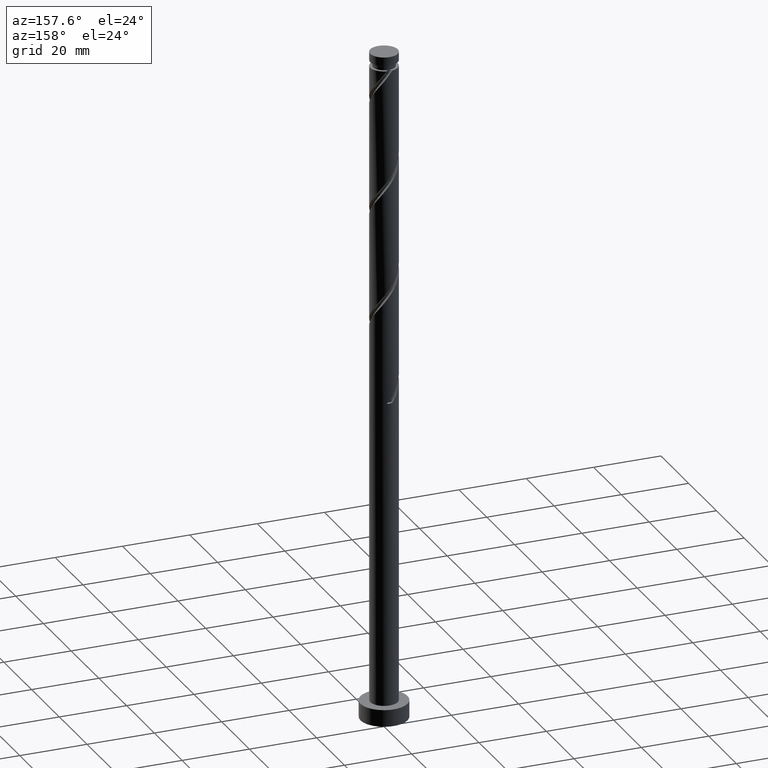
[diagram: clean part render]
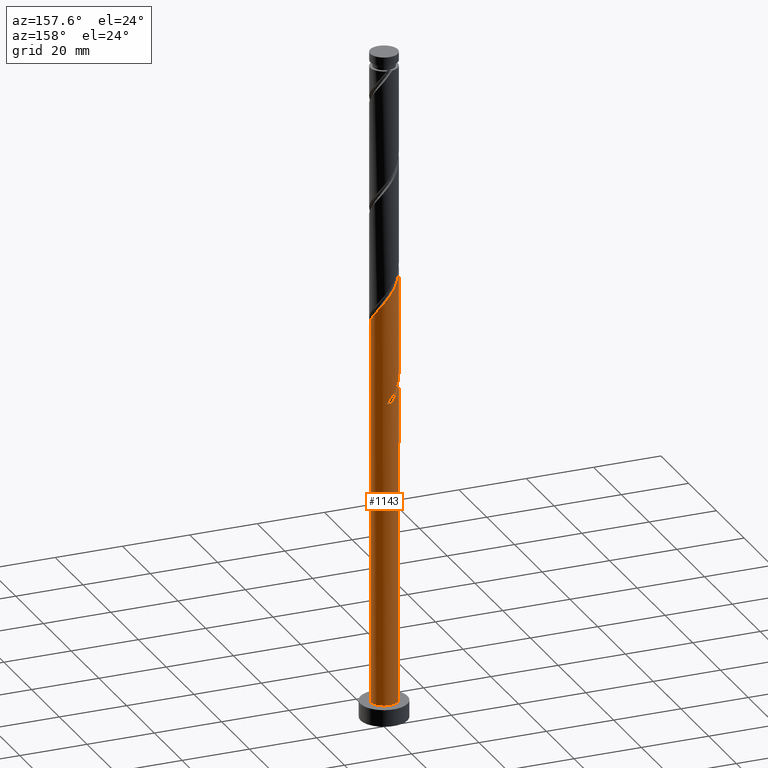
[diagram: same view with one face highlighted and labeled with its STEP entity id]
A machine part, auxiliary view. The second image highlights one B-rep face of the part: STEP entity #1143.
In plain terms, the highlighted cylindrical surface (edge-blend (fillet) strip) has radius 4.1 mm, axis along (-0, -0, -1).
Its self-contained STEP definition (entity closure, byte-faithful):
#2 = CARTESIAN_POINT ( 'NONE',  ( 2.264233908349269075, 3.418076185265834788, 124.9762429870026637 ) ) ;
#16 = CARTESIAN_POINT ( 'NONE',  ( 4.099999999999999645, 5.021051876504147385E-16, 200.0000000000000000 ) ) ;
#27 = CARTESIAN_POINT ( 'NONE',  ( -2.715581205524180586, 3.071745223192163810, 98.58735409811377792 ) ) ;
#44 = CARTESIAN_POINT ( 'NONE',  ( -0.8158896984274291997, 4.018000000000004235, 95.80957632033602067 ) ) ;
#53 = CARTESIAN_POINT ( 'NONE',  ( -0.8158896984274290887, 4.018000000000004235, 95.80957632033602067 ) ) ;
#70 = AXIS2_PLACEMENT_3D ( 'NONE', #233, #1577, #1286 ) ;
#71 = VECTOR ( 'NONE', #862, 1000.000000000000000 ) ;
#137 = CARTESIAN_POINT ( 'NONE',  ( 0.2518459921076788288, 4.092257762685450828, 127.7540207647804635 ) ) ;
#145 = CARTESIAN_POINT ( 'NONE',  ( -4.059101608817101692, 0.7906019473366244776, 135.3929096536693635 ) ) ;
#155 = EDGE_CURVE ( 'NONE', #818, #464, #1592, .T. ) ;
#169 = CARTESIAN_POINT ( 'NONE',  ( -1.828023854336183751, 3.669922177373510674, 97.19846520922489219 ) ) ;
#220 = CARTESIAN_POINT ( 'NONE',  ( -4.100000000000004974, -2.990756888724007897E-15, 136.4126763317925679 ) ) ;
#233 = CARTESIAN_POINT ( 'NONE',  ( 0.000000000000000000, 0.000000000000000000, 95.80957632033603488 ) ) ;
#259 = CARTESIAN_POINT ( 'NONE',  ( -0.2869099631212688184, 4.125413916553803517, 128.4484652092249348 ) ) ;
#266 = CARTESIAN_POINT ( 'NONE',  ( -2.715581205524180586, 3.071745223192163810, 131.9206874314471065 ) ) ;
#269 = CARTESIAN_POINT ( 'NONE',  ( -3.071745223192159369, 2.715581205524179698, 101.3651318758915778 ) ) ;
#272 = CARTESIAN_POINT ( 'NONE',  ( -3.887634921619593342, 1.302418794475823649, 101.3651318758915494 ) ) ;
#273 = CARTESIAN_POINT ( 'NONE',  ( -3.418076185265835232, 2.264233908349268631, 133.3095763203359922 ) ) ;
#279 = CARTESIAN_POINT ( 'NONE',  ( 0.7906019473366268091, 4.059101608817101692, 127.0595763203360207 ) ) ;
#302 = CYLINDRICAL_SURFACE ( 'NONE', #887, 4.099999999999999645 ) ;
#309 = ORIENTED_EDGE ( 'NONE', *, *, #1610, .T. ) ;
#312 = FACE_OUTER_BOUND ( 'NONE', #1360, .T. ) ;
#327 = LINE ( 'NONE', #16, #71 ) ;
#339 = CARTESIAN_POINT ( 'NONE',  ( 4.100000000000004974, 4.635673177522212615E-16, 119.7460096651259391 ) ) ;
#347 = LINE ( 'NONE', #1572, #431 ) ;
#392 = CARTESIAN_POINT ( 'NONE',  ( -3.119984136109582806, 2.714232175083515219, 132.6151318758916204 ) ) ;
#406 = CARTESIAN_POINT ( 'NONE',  ( -4.100000000000004974, -2.990756888724007897E-15, 136.4126763317925679 ) ) ;
#416 = CARTESIAN_POINT ( 'NONE',  ( 0.000000000000000000, 0.000000000000000000, 5.000000000000000000 ) ) ;
#431 = VECTOR ( 'NONE', #1145, 1000.000000000000000 ) ;
#464 = VERTEX_POINT ( 'NONE', #1150 ) ;
#498 = CARTESIAN_POINT ( 'NONE',  ( 4.100000000000004974, 4.635673177522212615E-16, 119.7460096651259391 ) ) ;
#509 = CARTESIAN_POINT ( 'NONE',  ( -2.714232175083509890, 3.119984136109578809, 100.6706874314471207 ) ) ;
#525 = ORIENTED_EDGE ( 'NONE', *, *, #155, .T. ) ;
#541 = CARTESIAN_POINT ( 'NONE',  ( -0.8158896984274289776, 4.018000000000004235, 129.1429096536693351 ) ) ;
#545 = CARTESIAN_POINT ( 'NONE',  ( -1.302418794475821207, 3.887634921619589345, 98.58735409811380634 ) ) ;
#562 = EDGE_CURVE ( 'NONE', #1021, #1256, #1678, .T. ) ;
#564 = CARTESIAN_POINT ( 'NONE',  ( -3.119984136109582806, 2.714232175083515219, 99.28179854255823500 ) ) ;
#583 = CARTESIAN_POINT ( 'NONE',  ( -4.100000000000004974, -2.990756888724007897E-15, 103.0793429984593104 ) ) ;
#591 = CARTESIAN_POINT ( 'NONE',  ( -4.059101608817101692, 0.7906019473366244776, 102.0595763203360349 ) ) ;
#641 = CARTESIAN_POINT ( 'NONE',  ( 0.8158896984274305320, 4.017999999999999794, 95.80957632033602067 ) ) ;
#655 = CARTESIAN_POINT ( 'NONE',  ( 1.814235641615024708, 3.716168234422086769, 125.6706874314471492 ) ) ;
#660 = CARTESIAN_POINT ( 'NONE',  ( -3.910586083446200956, 1.344869433733586694, 103.4484652092248922 ) ) ;
#666 = VERTEX_POINT ( 'NONE', #1166 ) ;
#670 = CARTESIAN_POINT ( 'NONE',  ( -2.264233908349265523, 3.418076185265831679, 99.97624298700266365 ) ) ;
#671 = EDGE_CURVE ( 'NONE', #1334, #1226, #707, .T. ) ;
#675 = CARTESIAN_POINT ( 'NONE',  ( 3.071745223192165586, 2.715581205524178365, 123.5873540981137495 ) ) ;
#690 = CARTESIAN_POINT ( 'NONE',  ( -1.344869433733587583, 3.910586083446207173, 129.8373540981138206 ) ) ;
#707 =( BOUNDED_CURVE ( )  B_SPLINE_CURVE ( 2, ( #498, #1032, #1460, #1737, #1467, #1221, #675, #816, #2, #655, #1611, #279, #137, #259, #541, #690, #1078, #1620, #266, #392, #273, #798, #1350, #145, #1059, #1339, #406 ),
 .UNSPECIFIED., .F., .T. ) 
 B_SPLINE_CURVE_WITH_KNOTS ( ( 3, 2, 2, 2, 2, 2, 2, 2, 2, 2, 2, 2, 2, 3 ),
 ( 0.1795317669814462946, 0.1875000000000000000, 0.1979166666666666297, 0.2083333333333333703, 0.2187500000000000000, 0.2291666666666666297, 0.2395833333333333703, 0.2500000000000000000, 0.2604166666666666297, 0.2708333333333333703, 0.2812500000000000000, 0.2916666666666666297, 0.3020833333333333703, 0.3045317669814462946 ),
 .UNSPECIFIED. ) 
 CURVE ( )  GEOMETRIC_REPRESENTATION_ITEM ( )  RATIONAL_B_SPLINE_CURVE ( ( 0.9062941362546472757, 0.9031415850403514689, 0.9090909090909271573, 0.9013135103398453030, 0.9090909090909271573, 0.9013135103398453030, 0.9090909090909271573, 0.9013135103398453030, 0.9090909090909271573, 0.9013135103398453030, 0.9090909090909271573, 0.9013135103398453030, 0.9090909090909271573, 0.9013135103398453030, 0.9090909090909271573, 0.9013135103398453030, 0.9090909090909271573, 0.9013135103398453030, 0.9090909090909271573, 0.9013135103398453030, 0.9090909090909271573, 0.9013135103398453030, 0.9090909090909271573, 0.9013135103398453030, 0.9090909090909271573, 0.9072628343904207693, 0.9062941362546472757 ) ) 
 REPRESENTATION_ITEM ( '' )  );
#781 = CARTESIAN_POINT ( 'NONE',  ( -4.099999999999999645, 0.4120655042562805237, 104.6730499396901308 ) ) ;
#798 = CARTESIAN_POINT ( 'NONE',  ( -3.716168234422086769, 1.814235641615022931, 134.0040207647804493 ) ) ;
#816 = CARTESIAN_POINT ( 'NONE',  ( 2.714232175083517440, 3.119984136109580142, 124.2817985425582634 ) ) ;
#818 = VERTEX_POINT ( 'NONE', #1695 ) ;
#820 = CARTESIAN_POINT ( 'NONE',  ( -3.669922177373504901, 1.828023854336183307, 102.7540207647804777 ) ) ;
#837 = CARTESIAN_POINT ( 'NONE',  ( -2.311178274938780586, 3.429258271300814620, 97.89290965366934927 ) ) ;
#852 = EDGE_CURVE ( 'NONE', #666, #464, #1310, .T. ) ;
#854 = CARTESIAN_POINT ( 'NONE',  ( 0.000000000000000000, 0.000000000000000000, 200.0000000000000000 ) ) ;
#862 = DIRECTION ( 'NONE',  ( -0.000000000000000000, -0.000000000000000000, -1.000000000000000000 ) ) ;
#887 = AXIS2_PLACEMENT_3D ( 'NONE', #854, #1651, #1381 ) ;
#923 = VERTEX_POINT ( 'NONE', #1057 ) ;
#963 = DIRECTION ( 'NONE',  ( 1.000000000000000000, 0.000000000000000000, 0.000000000000000000 ) ) ;
#1021 = VERTEX_POINT ( 'NONE', #44 ) ;
#1031 = EDGE_CURVE ( 'NONE', #1021, #666, #1133, .T. ) ;
#1032 = CARTESIAN_POINT ( 'NONE',  ( 4.100000000000005862, 0.4120655042562738624, 120.2794360343152107 ) ) ;
#1048 = ORIENTED_EDGE ( 'NONE', *, *, #852, .F. ) ;
#1057 = CARTESIAN_POINT ( 'NONE',  ( -4.100000000000000533, 4.919795081951022713E-15, 105.2064763088794024 ) ) ;
#1059 = CARTESIAN_POINT ( 'NONE',  ( -4.092257762685451716, 0.2518459921076763863, 136.0873540981137353 ) ) ;
#1078 = CARTESIAN_POINT ( 'NONE',  ( -1.828023854336183751, 3.669922177373510674, 130.5317985425582208 ) ) ;
#1083 = CARTESIAN_POINT ( 'NONE',  ( -3.429258271300808403, 2.311178274938777477, 102.0595763203360207 ) ) ;
#1133 =( BOUNDED_CURVE ( )  B_SPLINE_CURVE ( 2, ( #53, #1211, #169, #837, #27, #564, #1539, #1641, #272, #591, #1255, #1400, #583 ),
 .UNSPECIFIED., .F., .T. ) 
 B_SPLINE_CURVE_WITH_KNOTS ( ( 3, 2, 2, 2, 2, 2, 3 ),
 ( 0.000000000000000000, 0.01041666666666662966, 0.02083333333333337034, 0.03125000000000000000, 0.04166666666666662966, 0.05208333333333337034, 0.05453176698144637097 ),
 .UNSPECIFIED. ) 
 CURVE ( )  GEOMETRIC_REPRESENTATION_ITEM ( )  RATIONAL_B_SPLINE_CURVE ( ( 0.9090909090909271573, 0.9013135103398453030, 0.9090909090909271573, 0.9013135103398453030, 0.9090909090909271573, 0.9013135103398453030, 0.9090909090909271573, 0.9013135103398453030, 0.9090909090909271573, 0.9013135103398453030, 0.9090909090909271573, 0.9072628343904207693, 0.9062941362546472757 ) ) 
 REPRESENTATION_ITEM ( '' )  );
#1143 = ADVANCED_FACE ( 'NONE', ( #312 ), #302, .T. ) ;
#1145 = DIRECTION ( 'NONE',  ( -0.000000000000000000, -0.000000000000000000, -1.000000000000000000 ) ) ;
#1150 = CARTESIAN_POINT ( 'NONE',  ( -4.099999999999999645, 0.000000000000000000, 5.000000000000000000 ) ) ;
#1166 = CARTESIAN_POINT ( 'NONE',  ( -4.100000000000004974, -2.990756888724007897E-15, 103.0793429984593104 ) ) ;
#1175 = ORIENTED_EDGE ( 'NONE', *, *, #1243, .F. ) ;
#1190 = DIRECTION ( 'NONE',  ( -0.000000000000000000, -0.000000000000000000, -1.000000000000000000 ) ) ;
#1208 = CARTESIAN_POINT ( 'NONE',  ( -4.100000000000000533, 4.919795081951022713E-15, 105.2064763088794024 ) ) ;
#1211 = CARTESIAN_POINT ( 'NONE',  ( -1.344869433733587583, 3.910586083446207173, 96.50402076478047775 ) ) ;
#1221 = CARTESIAN_POINT ( 'NONE',  ( 3.429258271300815064, 2.311178274938778365, 122.8929096536693635 ) ) ;
#1226 = VERTEX_POINT ( 'NONE', #220 ) ;
#1233 = ORIENTED_EDGE ( 'NONE', *, *, #671, .F. ) ;
#1243 = EDGE_CURVE ( 'NONE', #1226, #923, #347, .T. ) ;
#1252 = AXIS2_PLACEMENT_3D ( 'NONE', #416, #1623, #963 ) ;
#1255 = CARTESIAN_POINT ( 'NONE',  ( -4.092257762685451716, 0.2518459921076763863, 102.7540207647804777 ) ) ;
#1256 = VERTEX_POINT ( 'NONE', #641 ) ;
#1262 =( BOUNDED_CURVE ( )  B_SPLINE_CURVE ( 2, ( #1208, #781, #1625, #660, #820, #1083, #269, #509, #670, #1332, #545, #1462, #1489, #1321, #1354 ),
 .UNSPECIFIED., .F., .T. ) 
 B_SPLINE_CURVE_WITH_KNOTS ( ( 3, 2, 2, 2, 2, 2, 2, 3 ),
 ( 0.9295317669814463502, 0.9375000000000000000, 0.9479166666666666297, 0.9583333333333333703, 0.9687500000000000000, 0.9791666666666666297, 0.9895833333333333703, 1.000000000000000000 ),
 .UNSPECIFIED. ) 
 CURVE ( )  GEOMETRIC_REPRESENTATION_ITEM ( )  RATIONAL_B_SPLINE_CURVE ( ( 0.9062941362546417245, 0.9031415850403461398, 0.9090909090909213841, 0.9013135103398399739, 0.9090909090909213841, 0.9013135103398399739, 0.9090909090909213841, 0.9013135103398399739, 0.9090909090909213841, 0.9013135103398399739, 0.9090909090909213841, 0.9013135103398399739, 0.9090909090909213841, 0.9013135103398399739, 0.9090909090909213841 ) ) 
 REPRESENTATION_ITEM ( '' )  );
#1286 = DIRECTION ( 'NONE',  ( -1.000000000000000000, 0.000000000000000000, 0.000000000000000000 ) ) ;
#1309 = VECTOR ( 'NONE', #1190, 1000.000000000000000 ) ;
#1310 = LINE ( 'NONE', #1473, #1309 ) ;
#1321 = CARTESIAN_POINT ( 'NONE',  ( 0.2869099631212730928, 4.125413916553798188, 96.50402076478044933 ) ) ;
#1332 = CARTESIAN_POINT ( 'NONE',  ( -1.814235641615019823, 3.716168234422081884, 99.28179854255823500 ) ) ;
#1334 = VERTEX_POINT ( 'NONE', #339 ) ;
#1339 = CARTESIAN_POINT ( 'NONE',  ( -4.100000000000004974, 0.1260420017964626882, 136.2495126437644331 ) ) ;
#1350 = CARTESIAN_POINT ( 'NONE',  ( -3.887634921619593342, 1.302418794475823649, 134.6984652092248780 ) ) ;
#1354 = CARTESIAN_POINT ( 'NONE',  ( 0.8158896984274305320, 4.017999999999999794, 95.80957632033602067 ) ) ;
#1360 = EDGE_LOOP ( 'NONE', ( #1233, #309, #525, #1048, #1624, #1747, #1582, #1175 ) ) ;
#1381 = DIRECTION ( 'NONE',  ( -1.000000000000000000, 0.000000000000000000, 0.000000000000000000 ) ) ;
#1400 = CARTESIAN_POINT ( 'NONE',  ( -4.100000000000004974, 0.1260420017964587469, 102.9161793104311471 ) ) ;
#1460 = CARTESIAN_POINT ( 'NONE',  ( 4.018000000000004235, 0.8158896984274293107, 120.8095763203359780 ) ) ;
#1462 = CARTESIAN_POINT ( 'NONE',  ( -0.7906019473366224792, 4.059101608817095475, 97.89290965366933506 ) ) ;
#1464 = EDGE_CURVE ( 'NONE', #923, #1256, #1262, .T. ) ;
#1467 = CARTESIAN_POINT ( 'NONE',  ( 3.669922177373511119, 1.828023854336181975, 122.1984652092248638 ) ) ;
#1473 = CARTESIAN_POINT ( 'NONE',  ( -4.099999999999999645, 0.000000000000000000, 200.0000000000000000 ) ) ;
#1489 = CARTESIAN_POINT ( 'NONE',  ( -0.2518459921076746100, 4.092257762685448164, 97.19846520922489219 ) ) ;
#1539 = CARTESIAN_POINT ( 'NONE',  ( -3.418076185265835232, 2.264233908349268631, 99.97624298700266365 ) ) ;
#1572 = CARTESIAN_POINT ( 'NONE',  ( -4.099999999999999645, 0.000000000000000000, 200.0000000000000000 ) ) ;
#1577 = DIRECTION ( 'NONE',  ( 0.000000000000000000, -0.000000000000000000, -1.000000000000000000 ) ) ;
#1582 = ORIENTED_EDGE ( 'NONE', *, *, #1464, .F. ) ;
#1592 = CIRCLE ( 'NONE', #1252, 4.099999999999999645 ) ;
#1610 = EDGE_CURVE ( 'NONE', #1334, #818, #327, .T. ) ;
#1611 = CARTESIAN_POINT ( 'NONE',  ( 1.302418794475825425, 3.887634921619592898, 126.3651318758915494 ) ) ;
#1620 = CARTESIAN_POINT ( 'NONE',  ( -2.311178274938780586, 3.429258271300814620, 131.2262429870027347 ) ) ;
#1623 = DIRECTION ( 'NONE',  ( 0.000000000000000000, 0.000000000000000000, 1.000000000000000000 ) ) ;
#1624 = ORIENTED_EDGE ( 'NONE', *, *, #1031, .F. ) ;
#1625 = CARTESIAN_POINT ( 'NONE',  ( -4.018000000000000682, 0.8158896984274299768, 104.1429096536693493 ) ) ;
#1641 = CARTESIAN_POINT ( 'NONE',  ( -3.716168234422086769, 1.814235641615022931, 100.6706874314470923 ) ) ;
#1651 = DIRECTION ( 'NONE',  ( -0.000000000000000000, -0.000000000000000000, -1.000000000000000000 ) ) ;
#1678 = CIRCLE ( 'NONE', #70, 4.099999999999999645 ) ;
#1695 = CARTESIAN_POINT ( 'NONE',  ( 4.099999999999999645, 5.021051876504147385E-16, 5.000000000000000000 ) ) ;
#1737 = CARTESIAN_POINT ( 'NONE',  ( 3.910586083446208061, 1.344869433733586472, 121.5040207647804777 ) ) ;
#1747 = ORIENTED_EDGE ( 'NONE', *, *, #562, .T. ) ;